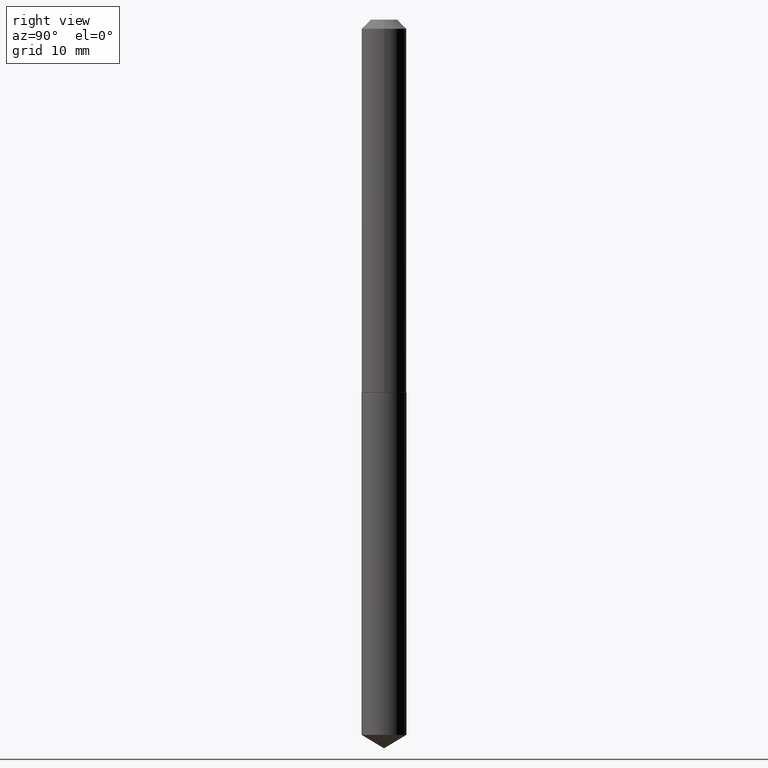
[diagram: clean part render]
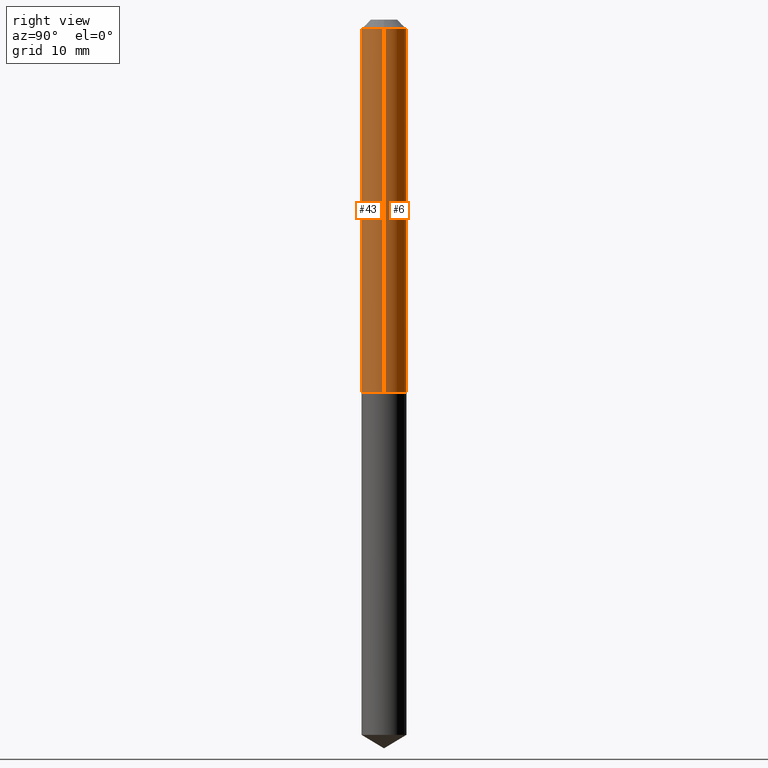
[diagram: same view with one multi-face feature highlighted, each face labeled with its STEP entity id]
A machine part, right view. The highlighted faces form ONE feature: a constant-radius fillet chain: 2 tangent blend faces with common blend radius 1.9558 mm. The faces share edges in the B-rep.
Their STEP definitions:
[1] entity #43 (Cylinder):
#1 = LINE ( 'NONE', #327, #279 ) ;
#9 = ORIENTED_EDGE ( 'NONE', *, *, #37, .T. ) ;
#17 = CIRCLE ( 'NONE', #242, 0.07699999999999998512 ) ;
#19 = EDGE_CURVE ( 'NONE', #29, #309, #1, .T. ) ;
#24 = CIRCLE ( 'NONE', #338, 0.07700000000000015166 ) ;
#29 = VERTEX_POINT ( 'NONE', #66 ) ;
#31 = CARTESIAN_POINT ( 'NONE',  ( 0.07700000000000015166, -5.001547017892806517E-15, -1.278500000000000414 ) ) ;
#37 = EDGE_CURVE ( 'NONE', #29, #227, #24, .T. ) ;
#43 = ADVANCED_FACE ( 'NONE', ( #301 ), #186, .T. ) ;
#66 = CARTESIAN_POINT ( 'NONE',  ( -0.07700000000000015166, -3.916740985175684490E-15, -1.278500000000000414 ) ) ;
#68 = LINE ( 'NONE', #184, #251 ) ;
#70 = DIRECTION ( 'NONE',  ( -2.445468806185136597E-29, 3.491481338843145583E-15, 1.000000000000000000 ) ) ;
#91 = EDGE_CURVE ( 'NONE', #309, #110, #17, .T. ) ;
#97 = CARTESIAN_POINT ( 'NONE',  ( -0.07699999999999998512, -1.739365935239627784E-15, -0.03125000000000019429 ) ) ;
#104 = ORIENTED_EDGE ( 'NONE', *, *, #19, .F. ) ;
#110 = VERTEX_POINT ( 'NONE', #288 ) ;
#122 = DIRECTION ( 'NONE',  ( 1.000000000000000000, -6.982962677686268288E-15, 0.000000000000000000 ) ) ;
#146 = ORIENTED_EDGE ( 'NONE', *, *, #283, .T. ) ;
#152 = CARTESIAN_POINT ( 'NONE',  ( 0.000000000000000000, 0.000000000000000000, 0.000000000000000000 ) ) ;
#160 = ORIENTED_EDGE ( 'NONE', *, *, #91, .F. ) ;
#172 = CARTESIAN_POINT ( 'NONE',  ( 7.642090019328599159E-31, -1.091087918388489774E-16, -0.03125000000000019429 ) ) ;
#184 = CARTESIAN_POINT ( 'NONE',  ( 0.07700000000000005451, -5.376881261818429193E-16, 3.754656117362873559E-30 ) ) ;
#186 = CYLINDRICAL_SURFACE ( 'NONE', #359, 0.07700000000000005451 ) ;
#198 = DIRECTION ( 'NONE',  ( 1.000000000000000000, -6.982962677686268288E-15, 0.000000000000000000 ) ) ;
#210 = DIRECTION ( 'NONE',  ( -2.445468806185136877E-29, 3.491481338843145188E-15, 1.000000000000000000 ) ) ;
#227 = VERTEX_POINT ( 'NONE', #31 ) ;
#242 = AXIS2_PLACEMENT_3D ( 'NONE', #172, #382, #198 ) ;
#244 = DIRECTION ( 'NONE',  ( -2.445468806185136597E-29, 3.491481338843145583E-15, 1.000000000000000000 ) ) ;
#251 = VECTOR ( 'NONE', #210, 39.37007874015748143 ) ;
#276 = EDGE_LOOP ( 'NONE', ( #104, #9, #146, #160 ) ) ;
#279 = VECTOR ( 'NONE', #296, 39.37007874015748143 ) ;
#283 = EDGE_CURVE ( 'NONE', #227, #110, #68, .T. ) ;
#288 = CARTESIAN_POINT ( 'NONE',  ( 0.07699999999999998512, -6.467969180206915269E-16, -0.03125000000000019429 ) ) ;
#296 = DIRECTION ( 'NONE',  ( -2.445468806185136877E-29, 3.491481338843145188E-15, 1.000000000000000000 ) ) ;
#301 = FACE_OUTER_BOUND ( 'NONE', #276, .T. ) ;
#309 = VERTEX_POINT ( 'NONE', #97 ) ;
#327 = CARTESIAN_POINT ( 'NONE',  ( -0.07700000000000005451, 5.471179065352775305E-16, -3.787580019496280580E-30 ) ) ;
#335 = CARTESIAN_POINT ( 'NONE',  ( 3.126531868707697538E-29, -4.463858891710962908E-15, -1.278500000000000414 ) ) ;
#338 = AXIS2_PLACEMENT_3D ( 'NONE', #335, #70, #122 ) ;
#350 = DIRECTION ( 'NONE',  ( 1.000000000000000000, -6.982962677686266711E-15, 4.876176775795936353E-29 ) ) ;
#359 = AXIS2_PLACEMENT_3D ( 'NONE', #152, #244, #350 ) ;
#382 = DIRECTION ( 'NONE',  ( -2.445468806185136597E-29, 3.491481338843145583E-15, 1.000000000000000000 ) ) ;
[2] entity #6 (Cylinder):
#1 = LINE ( 'NONE', #327, #279 ) ;
#6 = ADVANCED_FACE ( 'NONE', ( #99 ), #270, .T. ) ;
#19 = EDGE_CURVE ( 'NONE', #29, #309, #1, .T. ) ;
#29 = VERTEX_POINT ( 'NONE', #66 ) ;
#31 = CARTESIAN_POINT ( 'NONE',  ( 0.07700000000000015166, -5.001547017892806517E-15, -1.278500000000000414 ) ) ;
#54 = DIRECTION ( 'NONE',  ( -2.445468806185136597E-29, 3.491481338843145583E-15, 1.000000000000000000 ) ) ;
#63 = DIRECTION ( 'NONE',  ( -2.445468806185136597E-29, 3.491481338843145583E-15, 1.000000000000000000 ) ) ;
#66 = CARTESIAN_POINT ( 'NONE',  ( -0.07700000000000015166, -3.916740985175684490E-15, -1.278500000000000414 ) ) ;
#68 = LINE ( 'NONE', #184, #251 ) ;
#82 = DIRECTION ( 'NONE',  ( -2.445468806185136597E-29, 3.491481338843145583E-15, 1.000000000000000000 ) ) ;
#97 = CARTESIAN_POINT ( 'NONE',  ( -0.07699999999999998512, -1.739365935239627784E-15, -0.03125000000000019429 ) ) ;
#99 = FACE_OUTER_BOUND ( 'NONE', #209, .T. ) ;
#110 = VERTEX_POINT ( 'NONE', #288 ) ;
#124 = AXIS2_PLACEMENT_3D ( 'NONE', #233, #54, #325 ) ;
#143 = EDGE_CURVE ( 'NONE', #110, #309, #228, .T. ) ;
#144 = ORIENTED_EDGE ( 'NONE', *, *, #143, .F. ) ;
#181 = AXIS2_PLACEMENT_3D ( 'NONE', #220, #63, #332 ) ;
#183 = EDGE_CURVE ( 'NONE', #227, #29, #306, .T. ) ;
#184 = CARTESIAN_POINT ( 'NONE',  ( 0.07700000000000005451, -5.376881261818429193E-16, 3.754656117362873559E-30 ) ) ;
#209 = EDGE_LOOP ( 'NONE', ( #312, #339, #144, #222 ) ) ;
#210 = DIRECTION ( 'NONE',  ( -2.445468806185136877E-29, 3.491481338843145188E-15, 1.000000000000000000 ) ) ;
#220 = CARTESIAN_POINT ( 'NONE',  ( 0.000000000000000000, 0.000000000000000000, 0.000000000000000000 ) ) ;
#222 = ORIENTED_EDGE ( 'NONE', *, *, #283, .F. ) ;
#227 = VERTEX_POINT ( 'NONE', #31 ) ;
#228 = CIRCLE ( 'NONE', #378, 0.07699999999999998512 ) ;
#233 = CARTESIAN_POINT ( 'NONE',  ( 3.126531868707697538E-29, -4.463858891710962908E-15, -1.278500000000000414 ) ) ;
#251 = VECTOR ( 'NONE', #210, 39.37007874015748143 ) ;
#270 = CYLINDRICAL_SURFACE ( 'NONE', #181, 0.07700000000000005451 ) ;
#279 = VECTOR ( 'NONE', #296, 39.37007874015748143 ) ;
#283 = EDGE_CURVE ( 'NONE', #227, #110, #68, .T. ) ;
#288 = CARTESIAN_POINT ( 'NONE',  ( 0.07699999999999998512, -6.467969180206915269E-16, -0.03125000000000019429 ) ) ;
#290 = CARTESIAN_POINT ( 'NONE',  ( 7.642090019328599159E-31, -1.091087918388489774E-16, -0.03125000000000019429 ) ) ;
#292 = DIRECTION ( 'NONE',  ( 1.000000000000000000, -6.982962677686268288E-15, 0.000000000000000000 ) ) ;
#296 = DIRECTION ( 'NONE',  ( -2.445468806185136877E-29, 3.491481338843145188E-15, 1.000000000000000000 ) ) ;
#306 = CIRCLE ( 'NONE', #124, 0.07700000000000015166 ) ;
#309 = VERTEX_POINT ( 'NONE', #97 ) ;
#312 = ORIENTED_EDGE ( 'NONE', *, *, #183, .T. ) ;
#325 = DIRECTION ( 'NONE',  ( 1.000000000000000000, -6.982962677686268288E-15, 0.000000000000000000 ) ) ;
#327 = CARTESIAN_POINT ( 'NONE',  ( -0.07700000000000005451, 5.471179065352775305E-16, -3.787580019496280580E-30 ) ) ;
#332 = DIRECTION ( 'NONE',  ( 1.000000000000000000, -6.982962677686266711E-15, 4.876176775795936353E-29 ) ) ;
#339 = ORIENTED_EDGE ( 'NONE', *, *, #19, .T. ) ;
#378 = AXIS2_PLACEMENT_3D ( 'NONE', #290, #82, #292 ) ;